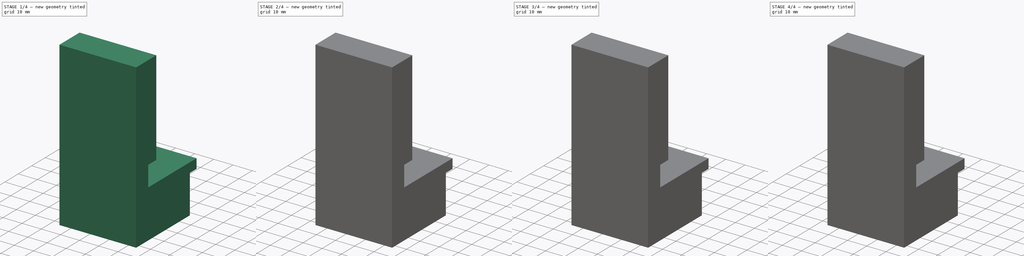
[diagram: build sequence overview — one tinted view per stage of 4, left to right]
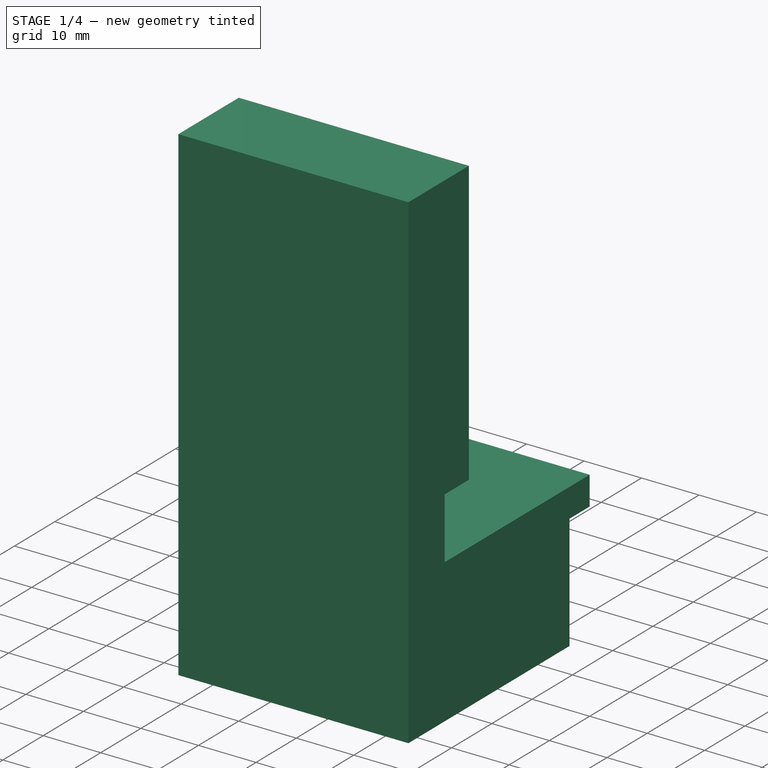
[diagram: stage 1 of 4 — iso view after this stage's code; geometry added in this stage tinted green]
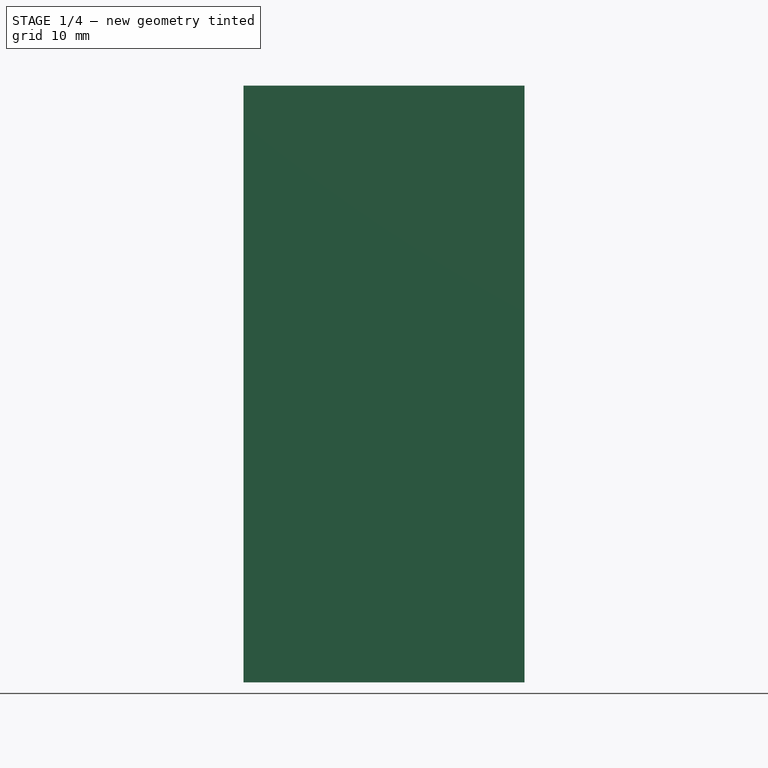
[diagram: stage 1 of 4 — front view after this stage's code; geometry added in this stage tinted green]
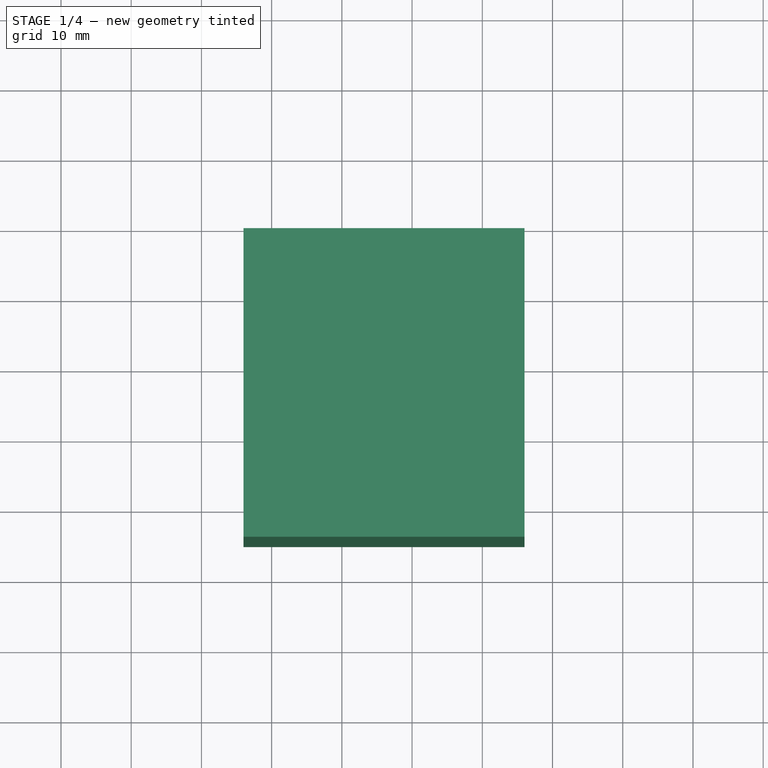
[diagram: stage 1 of 4 — top view after this stage's code; geometry added in this stage tinted green]
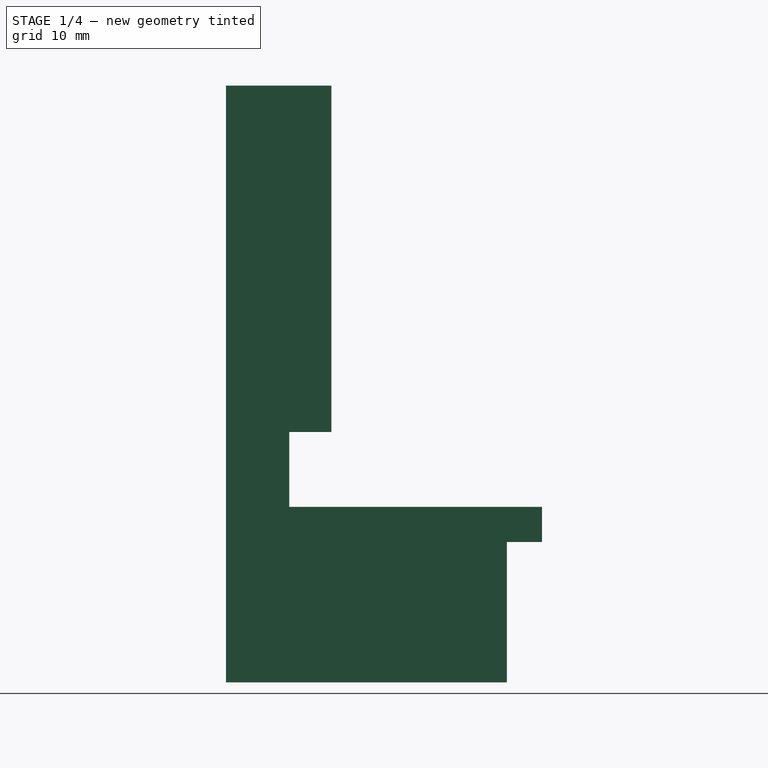
[diagram: stage 1 of 4 — right view after this stage's code; geometry added in this stage tinted green]
FCSTD DOCUMENT  (FreeCAD 1.1R20260223 (Git shallow))
Label: CNC
License: All rights reserved
LicenseURL: https://en.wikipedia.org/wiki/All_rights_reserved
objects: Sketcher::SketchObject×12, TechDraw::DrawProjGroupItem×12, PartDesign::Pocket×8, TechDraw::DrawViewAnnotation×6, TechDraw::DrawLeaderLine×6, App::Point×4, PartDesign::Pad×4, PartDesign::Body×4, TechDraw::DrawSVGTemplate×4, TechDraw::DrawProjGroup×4, TechDraw::DrawPage×4
note: 64 computed .brp shape members not serialized (recipe doc carries the construction recipe); baked Part::Feature solids carry a one-line shape summary decoded from their .brp

FEATURE [PartDesign::Body] Body005  label="Coarse X Slider"
  AllowCompound = false
  Group = -> [Sketch020,Pad005,Sketch021,Pocket014,Sketch022,Pocket015]
  Origin = -> Origin036
  Placement = pos=(0,0,0) rot=(1,0,0;3.14159rad)
  Tip = -> Pocket015
FEATURE [App::Point] Origin041  label="Origin047"
  Role = Origin
FEATURE [Sketcher::SketchObject] Sketch029
  ArcFitTolerance = 1e-06
  AttachmentSupport = -> [Origin040]
  ExternalTypes = [0]
  FullyConstrained = true
  MakeInternals = false
  MapMode = 5
  Placement = pos=(0,0,0) rot=(0.57735,0.57735,0.57735;2.0944rad)
  sketch-geometry (10):
    g0: LineSegment StartX=0 StartY=60 StartZ=0 EndX=-15 EndY=60 EndZ=0
    g1: LineSegment StartX=-15 StartY=60 StartZ=0 EndX=-15 EndY=-25 EndZ=0
    g2: LineSegment StartX=-15 StartY=-25 StartZ=0 EndX=25 EndY=-25 EndZ=0
    g3: LineSegment StartX=30 StartY=0 StartZ=0 EndX=-6 EndY=0 EndZ=0
    g4: LineSegment StartX=-6 StartY=0 StartZ=0 EndX=-6 EndY=10.66 EndZ=0
    g5: LineSegment StartX=-6 StartY=10.66 StartZ=0 EndX=0 EndY=10.66 EndZ=0
    g6: LineSegment StartX=0 StartY=10.66 StartZ=0 EndX=0 EndY=60 EndZ=0
    g7: LineSegment StartX=30 StartY=0 StartZ=0 EndX=30 EndY=-5 EndZ=0
    g8: LineSegment StartX=30 StartY=-5 StartZ=0 EndX=25 EndY=-5 EndZ=0
    g9: LineSegment StartX=25 StartY=-5 StartZ=0 EndX=25 EndY=-25 EndZ=0
  constraints (30):
    c: PointOnObject(g0,g-2)
    c: Horizontal(g0)
    c: Coincident(g1,g0)
    c: Vertical(g1)
    c: Coincident(g2,g1)
    c: Horizontal(g2)
    c: PointOnObject(g3,g-1)
    c: PointOnObject(g3,g-1)
    c: Coincident(g4,g3)
    c: Vertical(g4)
    c: Coincident(g5,g4)
    c: PointOnObject(g5,g-2)
    c: Horizontal(g5)
    c: Coincident(g6,g5)
    c: Coincident(g6,g0)
    c: Distance(g-1,g0) = 60
    c: DistanceY(g2,g3) = 25
    c: DistanceX(g0,g0) = 15
    c: DistanceY(g4,g4) = 10.66
    c: Distance(g-1,g4) = 6
    c: Coincident(g7,g3)
    c: Vertical(g7)
    c: Coincident(g8,g7)
    c: Horizontal(g8)
    c: Coincident(g9,g8)
    c: Vertical(g9)
    c: Distance(g-1,g7) = 30
    c: Coincident(g9,g2)
    c: Distance(g7,g7) = 5
    c: Distance(g-1,g9) = 25
FEATURE [PartDesign::Pad] Pad008
  Direction = (1,0,0)
  Length = 26
  Length2 = 14
  Profile = -> Sketch029
  ReferenceAxis = -> Sketch029 [N_Axis]
  Refine = true
  SideType = 1
  Suppressed = false
  Type = 0
  Type2 = 0
FEATURE [Sketcher::SketchObject] Sketch030
  ArcFitTolerance = 1e-06
  AttachmentSupport = -> [Origin040]
  ExternalTypes = [0]
  FullyConstrained = true
  MakeInternals = false
  MapMode = 5
  Placement = pos=(0,0,0) rot=(1,0,0;1.5708rad)
  sketch-geometry (10):
    g0: LineSegment [constr] StartX=3.35 StartY=13.66 StartZ=0 EndX=3.35 EndY=16.66 EndZ=0
    g1: LineSegment [constr] StartX=3.35 StartY=16.66 StartZ=0 EndX=-13.65 EndY=16.66 EndZ=0
    g2: LineSegment [constr] StartX=-13.65 StartY=16.66 StartZ=0 EndX=-13.65 EndY=13.66 EndZ=0
    g3: LineSegment [constr] StartX=-13.65 StartY=13.66 StartZ=0 EndX=3.35 EndY=13.66 EndZ=0
    g4: ArcOfCircle CenterX=3.35 CenterY=16.66 CenterZ=0 NormalX=0 NormalY=0 NormalZ=1 AngleXU=0 Radius=3 StartAngle=1e-16 EndAngle=1.5708
    g5: ArcOfCircle CenterX=3.35 CenterY=13.66 CenterZ=0 NormalX=0 NormalY=0 NormalZ=1 AngleXU=0 Radius=3 StartAngle=4.71239 EndAngle=6.28319
    g6: LineSegment StartX=6.35 StartY=16.66 StartZ=0 EndX=6.35 EndY=13.66 EndZ=0
    g7: LineSegment StartX=3.35 StartY=19.66 StartZ=0 EndX=-20 EndY=19.66 EndZ=0
    g8: LineSegment StartX=3.35 StartY=10.66 StartZ=0 EndX=-20 EndY=10.66 EndZ=0
    g9: LineSegment StartX=-20 StartY=10.66 StartZ=0 EndX=-20 EndY=19.66 EndZ=0
  constraints (26):
    c: Coincident(g0,g1)
    c: Coincident(g1,g2)
    c: Coincident(g2,g3)
    c: Coincident(g3,g0)
    c: Vertical(g0)
    c: Vertical(g2)
    c: Horizontal(g1)
    c: Horizontal(g3)
    c: Distance(g-1,g0) = 3.35
    c: Distance(g-1,g2) = 13.65
    c: Distance(g-1,g3) = 13.66
    c: Distance(g-1,g1) = 16.66
    c: Coincident(g4,g0)
    c: Coincident(g5,g0)
    c: Vertical(g6)
    c: Horizontal(g7)
    c: Horizontal(g8)
    c: Coincident(g9,g8)
    c: Coincident(g9,g7)
    c: Vertical(g9)
    c: Tangent(g4,g6) = 1.5708
    c: Tangent(g5,g6) = 1.5708
    c: Tangent(g4,g7) = -1.5708
    c: Tangent(g5,g8) = 1.5708
    c: Distance(g-1,g9) = 20
    c: Radius(g4) = 3
FEATURE [PartDesign::Pocket] Pocket019
  BaseFeature = -> Pad008
  Direction = (0,1,-2e-16)
  Length = 10
  Length2 = 5
  Profile = -> Sketch030
  ReferenceAxis = -> Sketch030 [N_Axis]
  Refine = true
  Reversed = true
  SideType = 0
  Suppressed = false
  Type = 0
  Type2 = 0
FEATURE [Sketcher::SketchObject] Sketch031
  ArcFitTolerance = 1e-06
  AttachmentSupport = -> [Origin040]
  ExternalTypes = [0]
  FullyConstrained = true
  MakeInternals = false
  MapMode = 5
  Placement = pos=(0,0,0) rot=(1,0,0;1.5708rad)
  sketch-geometry (9):
    g0: LineSegment [constr] StartX=3.35 StartY=13.66 StartZ=0 EndX=3.35 EndY=16.66 EndZ=0
    g1: LineSegment [constr] StartX=3.35 StartY=16.66 StartZ=0 EndX=-13.65 EndY=16.66 EndZ=0
    g2: LineSegment [constr] StartX=-13.65 StartY=16.66 StartZ=0 EndX=-13.65 EndY=13.66 EndZ=0
    g3: LineSegment [constr] StartX=-13.65 StartY=13.66 StartZ=0 EndX=3.35 EndY=13.66 EndZ=0
    g4: ArcOfCircle CenterX=3.35 CenterY=16.66 CenterZ=0 NormalX=0 NormalY=0 NormalZ=1 AngleXU=0 Radius=3 StartAngle=5e-16 EndAngle=1.5708
    g5: LineSegment StartX=6.35 StartY=16.66 StartZ=0 EndX=6.35 EndY=10.66 EndZ=0
    g6: LineSegment StartX=3.35 StartY=19.66 StartZ=0 EndX=-20 EndY=19.66 EndZ=0
    g7: LineSegment StartX=6.35 StartY=10.66 StartZ=0 EndX=-20 EndY=10.66 EndZ=0
    g8: LineSegment StartX=-20 StartY=10.66 StartZ=0 EndX=-20 EndY=19.66 EndZ=0
  constraints (25):
    c: Coincident(g0,g1)
    c: Coincident(g1,g2)
    c: Coincident(g2,g3)
    c: Coincident(g3,g0)
    c: Vertical(g0)
    c: Vertical(g2)
    c: Horizontal(g1)
    c: Horizontal(g3)
    c: Distance(g-1,g0) = 3.35
    c: Distance(g-1,g2) = 13.65
    c: Distance(g-1,g3) = 13.66
    c: Distance(g-1,g1) = 16.66
    c: Coincident(g4,g0)
    c: Vertical(g5)
    c: Horizontal(g6)
    c: Horizontal(g7)
    c: Coincident(g8,g7)
    c: Coincident(g8,g6)
    c: Vertical(g8)
    c: Tangent(g4,g5) = 1.5708
    c: Tangent(g4,g6) = -1.5708
    c: Distance(g-1,g8) = 20
    c: Radius(g4) = 3
    c: Coincident(g5,g7)
    c: Distance(g0,g7) = 3
FEATURE [PartDesign::Pocket] Pocket020
  BaseFeature = -> Pocket019
  Direction = (0,1,-2e-16)
  Length = 6
  Length2 = 5
  Profile = -> Sketch031
  ReferenceAxis = -> Sketch031 [N_Axis]
  Refine = true
  Reversed = true
  SideType = 0
  Suppressed = false
  Type = 0
  Type2 = 0
FEATURE [PartDesign::Body] Body007  label="STM Base"
  AllowCompound = false
  Group = -> [Sketch029,Pad008,Sketch030,Pocket019,Sketch031,Pocket020]
  Origin = -> Origin040
  Placement = pos=(0,0,0) rot=(1,0,0;1.5708rad)
  Tip = -> Pocket020
FEATURE [TechDraw::DrawSVGTemplate] Template
  Height = 210
  Orientation = 1
  Template = /Applications/FreeCAD.app/Contents/Resources/share/Mod/TechDraw/Templates/ISO/A4_Landscape_TD.svg
  Width = 297
FEATURE [TechDraw::DrawProjGroupItem] ProjItem  label="Front"
  CoarseView = false
  Direction = (0,-1,0)
  Focus = 100
  HardHidden = true
  IsoCount = 0
  IsoHidden = false
  IsoVisible = false
  LockPosition = true
  Perspective = false
  Rotation = 0
  RotationVector = (0.707107,0.707107,0)
  Scale = 3
  ScaleType = 2
  ScrubCount = 1
  SeamHidden = false
  SeamVisible = false
  SmoothHidden = false
  SmoothVisible = true
  Source = -> [Body002]
  Type = 0
  X = 0
  XDirection = (0.707107,0.707107,0)
  Y = 0
FEATURE [TechDraw::DrawProjGroupItem] ProjItem003  label="Top"
  CoarseView = false
  Direction = (0,0,1)
  Focus = 100
  HardHidden = true
  IsoCount = 0
  IsoHidden = false
  IsoVisible = false
  LockPosition = false
  Perspective = false
  Rotation = 0
  RotationVector = (1,0,0)
  Scale = 3
  ScaleType = 2
  ScrubCount = 1
  SeamHidden = false
  SeamVisible = false
  SmoothHidden = false
  SmoothVisible = true
  Source = -> [Body002]
  Type = 4
  X = 0
  XDirection = (1,0,0)
  Y = 56.76
FEATURE [TechDraw::DrawProjGroupItem] ProjItem005  label="FrontTopRight"
  CoarseView = false
  Direction = (0.57735,-0.57735,0.57735)
  Focus = 100
  HardHidden = true
  IsoCount = 0
  IsoHidden = false
  IsoVisible = false
  LockPosition = false
  Perspective = false
  Rotation = 0
  RotationVector = (1,0,0)
  Scale = 3
  ScaleType = 2
  ScrubCount = 1
  SeamHidden = false
  SeamVisible = false
  SmoothHidden = false
  SmoothVisible = true
  Source = -> [Body002]
  Type = 7
  X = 92.432
  XDirection = (0.707107,0.707107,0)
  Y = 56.76
FEATURE [TechDraw::DrawProjGroup] ProjGroup
  Anchor = -> ProjItem
  AutoDistribute = true
  LockPosition = false
  ProjectionType = 1
  Rotation = 0
  Scale = 3
  ScaleType = 2
  Source = -> [Body002]
  Views = -> [ProjItem,ProjItem003,ProjItem005]
  X = 75.3358
  Y = 52.9012
  spacingX = 15
  spacingY = 15
FEATURE [TechDraw::DrawSVGTemplate] Template001
  Height = 210
  Orientation = 1
  Template = /Applications/FreeCAD.app/Contents/Resources/share/Mod/TechDraw/Templates/ISO/A4_Landscape_TD.svg
  Width = 297
FEATURE [TechDraw::DrawProjGroupItem] ProjItem006  label="Front001"
  CoarseView = false
  Direction = (0,-1,0)
  Focus = 100
  HardHidden = true
  IsoCount = 0
  IsoHidden = false
  IsoVisible = false
  LockPosition = true
  Perspective = false
  Rotation = 0
  RotationVector = (0.707107,0.707107,0)
  Scale = 3
  ScaleType = 2
  ScrubCount = 1
  SeamHidden = false
  SeamVisible = false
  SmoothHidden = false
  SmoothVisible = true
  Source = -> [Body004]
  Type = 0
  X = 0
  XDirection = (0.707107,0.707107,0)
  Y = 0
FEATURE [TechDraw::DrawProjGroupItem] ProjItem007  label="FrontTopRight001"
  CoarseView = false
  Direction = (0.57735,-0.57735,0.57735)
  Focus = 100
  HardHidden = true
  IsoCount = 0
  IsoHidden = false
  IsoVisible = false
  LockPosition = false
  Perspective = false
  Rotation = 0
  RotationVector = (1,0,0)
  Scale = 3
  ScaleType = 2
  ScrubCount = 1
  SeamHidden = false
  SeamVisible = false
  SmoothHidden = false
  SmoothVisible = true
  Source = -> [Body004]
  Type = 7
  X = 88.2742
  XDirection = (0.707107,0.707107,0)
  Y = 64.26
FEATURE [TechDraw::DrawProjGroupItem] ProjItem008  label="Top001"
  CoarseView = false
  Direction = (0,0,1)
  Focus = 100
  HardHidden = true
  IsoCount = 0
  IsoHidden = false
  IsoVisible = false
  LockPosition = false
  Perspective = false
  Rotation = 0
  RotationVector = (1,0,0)
  Scale = 3
  ScaleType = 2
  ScrubCount = 1
  SeamHidden = false
  SeamVisible = false
  SmoothHidden = false
  SmoothVisible = true
  Source = -> [Body004]
  Type = 4
  X = 0
  XDirection = (1,0,0)
  Y = 64.26
FEATURE [TechDraw::DrawProjGroup] ProjGroup001
  Anchor = -> ProjItem006
  AutoDistribute = true
  LockPosition = false
  ProjectionType = 1
  Rotation = 0
  Scale = 3
  ScaleType = 2
  Source = -> [Body004]
  Views = -> [ProjItem006,ProjItem007,ProjItem008]
  X = 82.6035
  Y = 40.3352
  spacingX = 15
  spacingY = 15
FEATURE [TechDraw::DrawSVGTemplate] Template002
  Height = 210
  Orientation = 1
  Template = /Applications/FreeCAD.app/Contents/Resources/share/Mod/TechDraw/Templates/ISO/A4_Landscape_TD.svg
  Width = 297
FEATURE [TechDraw::DrawProjGroupItem] ProjItem009  label="Front002"
  CoarseView = false
  Direction = (0,-1,0)
  Focus = 100
  HardHidden = true
  IsoCount = 0
  IsoHidden = false
  IsoVisible = false
  LockPosition = true
  Perspective = false
  Rotation = 0
  RotationVector = (0.707107,0.707107,0)
  Scale = 3
  ScaleType = 2
  ScrubCount = 1
  SeamHidden = false
  SeamVisible = false
  SmoothHidden = false
  SmoothVisible = true
  Source = -> [Body005]
  Type = 0
  X = 0
  XDirection = (0.707107,0.707107,0)
  Y = 0
FEATURE [TechDraw::DrawProjGroupItem] ProjItem010  label="Top002"
  CoarseView = false
  Direction = (0,0,1)
  Focus = 100
  HardHidden = true
  IsoCount = 0
  IsoHidden = false
  IsoVisible = false
  LockPosition = false
  Perspective = false
  Rotation = 0
  RotationVector = (1,0,0)
  Scale = 3
  ScaleType = 2
  ScrubCount = 1
  SeamHidden = false
  SeamVisible = false
  SmoothHidden = false
  SmoothVisible = true
  Source = -> [Body005]
  Type = 4
  X = 0
  XDirection = (1,0,0)
  Y = 64.26
FEATURE [TechDraw::DrawProjGroupItem] ProjItem011  label="FrontTopRight002"
  CoarseView = false
  Direction = (0.57735,-0.57735,0.57735)
  Focus = 100
  HardHidden = true
  IsoCount = 0
  IsoHidden = false
  IsoVisible = false
  LockPosition = false
  Perspective = false
  Rotation = 0
  RotationVector = (1,0,0)
  Scale = 3
  ScaleType = 2
  ScrubCount = 1
  SeamHidden = false
  SeamVisible = false
  SmoothHidden = false
  SmoothVisible = true
  Source = -> [Body005]
  Type = 7
  X = 97.5315
  XDirection = (0.707107,0.707107,0)
  Y = 64.26
FEATURE [TechDraw::DrawProjGroup] ProjGroup002
  Anchor = -> ProjItem009
  AutoDistribute = true
  LockPosition = false
  ProjectionType = 1
  Rotation = 0
  Scale = 3
  ScaleType = 2
  Source = -> [Body005]
  Views = -> [ProjItem009,ProjItem010,ProjItem011]
  X = 77.6767
  Y = 33.5608
  spacingX = 15
  spacingY = 15
FEATURE [TechDraw::DrawViewAnnotation] Annotation
  Font = osifont
  LineSpace = 100
  LockPosition = false
  MaxWidth = -1
  Rotation = 0
  ScaleType = 0
  Text = V-Groove | 0.4 μm Ra
  TextSize = 5
  TextStyle = 0
  X = 40.7254
  Y = 176.131
FEATURE [TechDraw::DrawViewAnnotation] Annotation003
  Font = osifont
  LineSpace = 100
  LockPosition = false
  MaxWidth = -1
  Rotation = 0
  ScaleType = 0
  Text = Recessed Large Flat Area | 0.4 μm Ra
  TextSize = 5
  TextStyle = 0
  X = 133.719
  Y = 176.131
FEATURE [TechDraw::DrawLeaderLine] LeaderLine
  AutoHorizontal = true
  EndSymbol = 7
  LeaderParent = -> ProjItem003
  LockPosition = true
  RotatesWithParent = true
  Rotation = 0
  Scalable = false
  ScaleType = 0
  StartSymbol = 0
  WayPoints = (3) [(0,0,0),(-0.307927,-51.4239,0),(9.54575,-51.7318,0)]
  X = 7.52837
  Y = 0.089651
FEATURE [TechDraw::DrawLeaderLine] LeaderLine001
  AutoHorizontal = true
  EndSymbol = 7
  LeaderParent = -> ProjItem003
  LockPosition = true
  RotatesWithParent = true
  Rotation = 0
  Scalable = false
  ScaleType = 0
  StartSymbol = 0
  WayPoints = (3) [(0,0,0),(-2.50592,-7.7962,0),(-14.7571,-8.07463,0)]
  X = -7.65696
  Y = 13.3102
FEATURE [TechDraw::DrawPage] Page  label="Coarse Z Slider Drawing"
  KeepUpdated = true
  NextBalloonIndex = 1
  ProjectionType = 0
  Template = -> Template
  Views = -> [ProjGroup,Annotation,Annotation003,LeaderLine,LeaderLine001]
FEATURE [TechDraw::DrawViewAnnotation] Annotation005
  Font = osifont
  LineSpace = 100
  LockPosition = false
  MaxWidth = -1
  Rotation = 0
  ScaleType = 0
  Text = V-Groove | 0.4 μm Ra
  TextSize = 5
  TextStyle = 0
  X = 51.8108
  Y = 174.9
FEATURE [TechDraw::DrawViewAnnotation] Annotation006
  Font = osifont
  LineSpace = 100
  LockPosition = false
  MaxWidth = -1
  Rotation = 0
  ScaleType = 0
  Text = Recessed Large Flat Area | 0.4 μm Ra
  TextSize = 5
  TextStyle = 0
  X = 133.412
  Y = 174.9
FEATURE [TechDraw::DrawViewAnnotation] Annotation007
  Font = osifont
  LineSpace = 100
  LockPosition = false
  MaxWidth = -1
  Rotation = 0
  ScaleType = 0
  Text = V-Groove | 0.4 μm Ra
  TextSize = 5
  TextStyle = 0
  X = 50.5791
  Y = 174.284
FEATURE [TechDraw::DrawViewAnnotation] Annotation008
  Font = osifont
  LineSpace = 100
  LockPosition = false
  MaxWidth = -1
  Rotation = 0
  ScaleType = 0
  Text = Recessed Large Flat Area | 0.4 μm Ra
  TextSize = 5
  TextStyle = 0
  X = 137.415
  Y = 174.284
FEATURE [TechDraw::DrawLeaderLine] LeaderLine002
  AutoHorizontal = true
  EndSymbol = 7
  LeaderParent = -> ProjItem008
  LockPosition = true
  RotatesWithParent = true
  Rotation = 0
  Scalable = false
  ScaleType = 0
  StartSymbol = 0
  WayPoints = (3) [(0,0,0),(-0.307927,-54.8111,0),(12.625,-54.8111,0)]
  X = 7.67187
  Y = 0.238653
FEATURE [TechDraw::DrawLeaderLine] LeaderLine003
  AutoHorizontal = true
  EndSymbol = 7
  LeaderParent = -> ProjItem008
  LockPosition = true
  RotatesWithParent = true
  Rotation = 0
  Scalable = false
  ScaleType = 0
  StartSymbol = 0
  WayPoints = (3) [(0,0,0),(-3.3872,-7.69819,0),(-17.5519,-7.69819,0)]
  X = -7.51922
  Y = 15.8403
FEATURE [TechDraw::DrawPage] Page001  label="Coarse Y Slider Drawing"
  KeepUpdated = true
  NextBalloonIndex = 1
  ProjectionType = 0
  Template = -> Template001
  Views = -> [ProjGroup001,Annotation005,Annotation006,LeaderLine002,LeaderLine003]
FEATURE [TechDraw::DrawLeaderLine] LeaderLine004
  AutoHorizontal = true
  EndSymbol = 7
  LeaderParent = -> ProjItem010
  LockPosition = true
  RotatesWithParent = true
  Rotation = 0
  Scalable = false
  ScaleType = 0
  StartSymbol = 0
  WayPoints = (3) [(0,0,0),(-0.615855,-55.4269,0),(13.8567,-55.7349,0)]
  X = 10.0326
  Y = 1.98358
FEATURE [TechDraw::DrawLeaderLine] LeaderLine005
  AutoHorizontal = true
  EndSymbol = 7
  LeaderParent = -> ProjItem010
  LockPosition = true
  RotatesWithParent = true
  Rotation = 0
  Scalable = false
  ScaleType = 0
  StartSymbol = 0
  WayPoints = (3) [(0,0,0),(-6.15855,-12.0092,0),(-23.4025,-12.0092,0)]
  X = -4.85052
  Y = 15.8403
FEATURE [TechDraw::DrawPage] Page002  label="Coarse X Slider Drawing"
  KeepUpdated = true
  NextBalloonIndex = 1
  ProjectionType = 0
  Template = -> Template002
  Views = -> [ProjGroup002,Annotation007,Annotation008,LeaderLine004,LeaderLine005]
FEATURE [TechDraw::DrawSVGTemplate] Template003
  Height = 210
  Orientation = 1
  Template = /Applications/FreeCAD.app/Contents/Resources/share/Mod/TechDraw/Templates/ISO/A4_Landscape_TD.svg
  Width = 297
FEATURE [TechDraw::DrawProjGroupItem] ProjItem012  label="Front003"
  CoarseView = false
  Direction = (0,-1,0)
  Focus = 100
  HardHidden = true
  IsoCount = 0
  IsoHidden = false
  IsoVisible = false
  LockPosition = true
  Perspective = false
  Rotation = 0
  RotationVector = (0.707107,0.707107,0)
  ScaleType = 0
  ScrubCount = 1
  SeamHidden = false
  SeamVisible = false
  SmoothHidden = false
  SmoothVisible = true
  Source = -> [Body007]
  Type = 0
  X = 0
  XDirection = (0.707107,0.707107,0)
  Y = 0
FEATURE [TechDraw::DrawProjGroupItem] ProjItem013  label="Top003"
  CoarseView = false
  Direction = (0,0,1)
  Focus = 100
  HardHidden = true
  IsoCount = 0
  IsoHidden = false
  IsoVisible = false
  LockPosition = false
  Perspective = false
  Rotation = 0
  RotationVector = (1,0,0)
  ScaleType = 0
  ScrubCount = 1
  SeamHidden = false
  SeamVisible = false
  SmoothHidden = false
  SmoothVisible = true
  Source = -> [Body007]
  Type = 4
  X = 0
  XDirection = (1,0,0)
  Y = 80
FEATURE [TechDraw::DrawProjGroupItem] ProjItem014  label="FrontTopRight003"
  CoarseView = false
  Direction = (0.57735,-0.57735,0.57735)
  Focus = 100
  HardHidden = true
  IsoCount = 0
  IsoHidden = false
  IsoVisible = false
  LockPosition = false
  Perspective = false
  Rotation = 0
  RotationVector = (1,0,0)
  ScaleType = 0
  ScrubCount = 1
  SeamHidden = false
  SeamVisible = false
  SmoothHidden = false
  SmoothVisible = true
  Source = -> [Body007]
  Type = 7
  X = 79.1942
  XDirection = (0.707107,0.707107,0)
  Y = 80
FEATURE [TechDraw::DrawProjGroup] ProjGroup003
  Anchor = -> ProjItem012
  AutoDistribute = true
  LockPosition = false
  ProjectionType = 1
  Rotation = 0
  ScaleType = 0
  Source = -> [Body007]
  Views = -> [ProjItem012,ProjItem013,ProjItem014]
  X = 92.4572
  Y = 48.6493
  spacingX = 15
  spacingY = 15
FEATURE [TechDraw::DrawPage] Page003  label="STM Base Drawing"
  KeepUpdated = true
  NextBalloonIndex = 1
  ProjectionType = 0
  Template = -> Template003
  Views = -> [ProjGroup003]
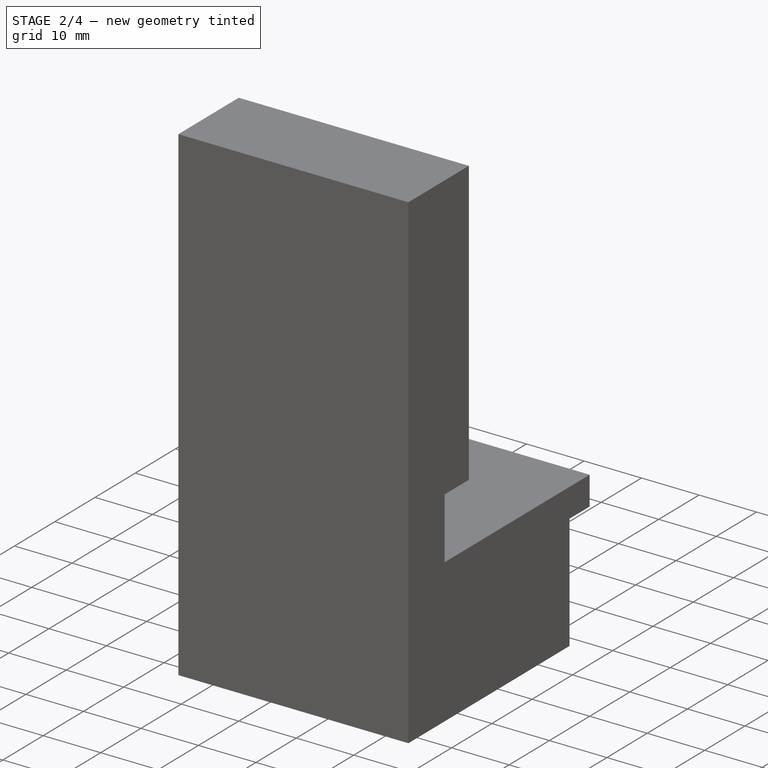
[diagram: stage 2 of 4 — iso view after this stage's code; geometry added in this stage tinted green]
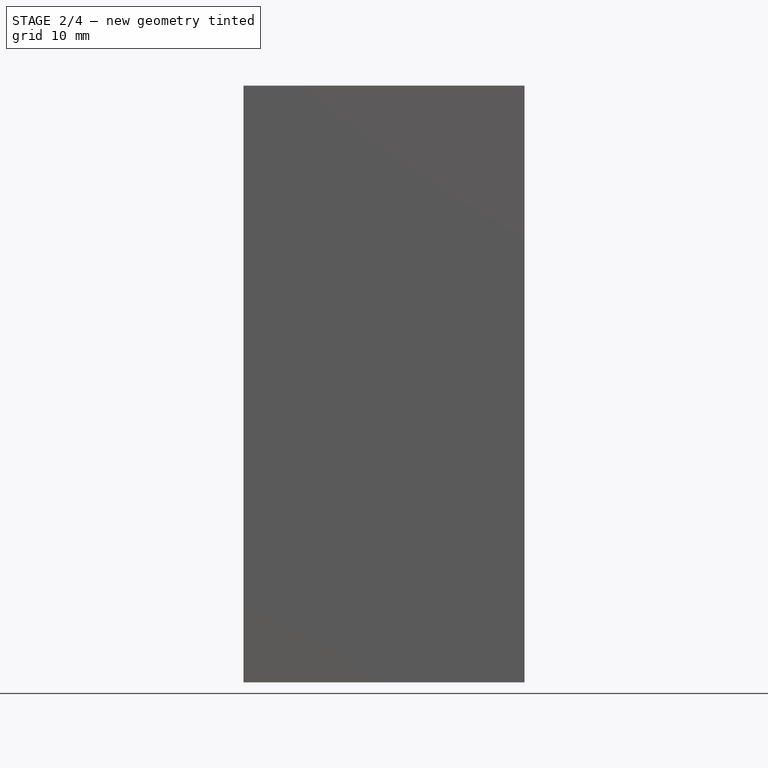
[diagram: stage 2 of 4 — front view after this stage's code; geometry added in this stage tinted green]
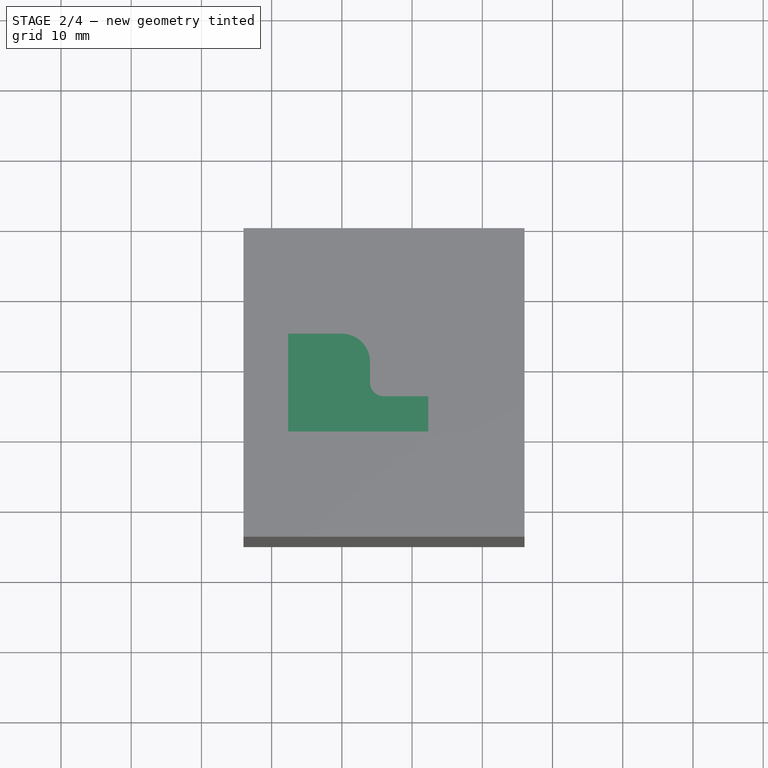
[diagram: stage 2 of 4 — top view after this stage's code; geometry added in this stage tinted green]
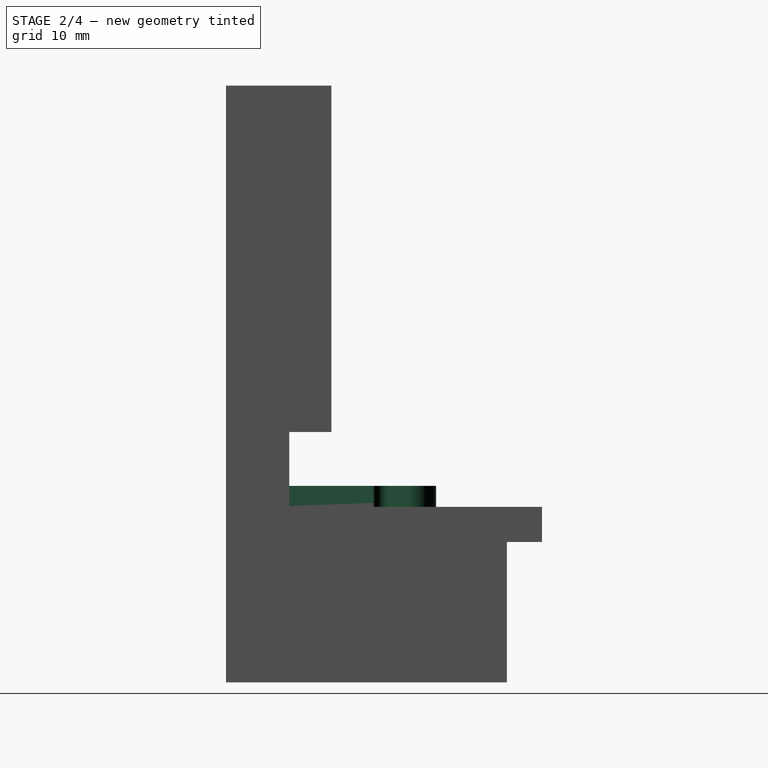
[diagram: stage 2 of 4 — right view after this stage's code; geometry added in this stage tinted green]
FEATURE [PartDesign::Body] Body004  label="Coarse Y Slider"
  AllowCompound = false
  Group = -> [Sketch017,Pad004,Sketch018,Pocket012,Sketch019,Pocket013]
  Origin = -> Origin034
  Placement = pos=(0,0,0) rot=(1,0,0;3.14159rad)
  Tip = -> Pocket013
FEATURE [App::Point] Origin037  label="Origin043"
  Role = Origin
FEATURE [Sketcher::SketchObject] Sketch020
  ArcFitTolerance = 1e-06
  AttachmentSupport = -> [Origin036]
  ExternalTypes = [0]
  FullyConstrained = true
  MakeInternals = false
  MapMode = 5
  sketch-geometry (20):
    g0: LineSegment StartX=-7.65 StartY=14.92 StartZ=0 EndX=0 EndY=14.92 EndZ=0
    g1: LineSegment StartX=-7.65 StartY=-14.92 StartZ=0 EndX=-2.65 EndY=-14.92 EndZ=0
    g2: LineSegment StartX=12.3 StartY=6 StartZ=0 EndX=12.3 EndY=-6 EndZ=0
    g3: LineSegment StartX=-2.65 StartY=-14.92 StartZ=0 EndX=-2.65 EndY=-12 EndZ=0
    g4: LineSegment StartX=12.3 StartY=6 StartZ=0 EndX=6 EndY=6 EndZ=0
    g5: ArcOfCircle CenterX=6 CenterY=8 CenterZ=0 NormalX=0 NormalY=0 NormalZ=1 AngleXU=0 Radius=2 StartAngle=3.14159 EndAngle=4.71239
    g6: LineSegment StartX=-0.65 StartY=-10 StartZ=0 EndX=8.3 EndY=-10 EndZ=0
    g7: ArcOfCircle CenterX=-0.65 CenterY=-12 CenterZ=0 NormalX=0 NormalY=0 NormalZ=1 AngleXU=0 Radius=2 StartAngle=1.5708 EndAngle=3.14159
    g8: GeomPoint [constr] X=8.92 Y=-5.15 Z=0
    g9: GeomPoint [constr] X=-8.92 Y=-5.15 Z=0
    g10: GeomPoint [constr] X=0 Y=10.3 Z=0
    g11: ArcOfCircle CenterX=8.3 CenterY=-6 CenterZ=0 NormalX=0 NormalY=0 NormalZ=1 AngleXU=0 Radius=4 StartAngle=4.71239 EndAngle=6.28319
    g12: ArcOfCircle CenterX=-5e-16 CenterY=10.92 CenterZ=0 NormalX=0 NormalY=0 NormalZ=1 AngleXU=0 Radius=4 StartAngle=2e-16 EndAngle=1.5708
    g13: LineSegment StartX=4 StartY=10.92 StartZ=0 EndX=4 EndY=8 EndZ=0
    g14: LineSegment StartX=-7.65 StartY=14.92 StartZ=0 EndX=-7.65 EndY=-0.15 EndZ=0
    g15: LineSegment StartX=-7.65 StartY=-14.92 StartZ=0 EndX=-7.65 EndY=-10.15 EndZ=0
    g16: ArcOfCircle CenterX=-9.65 CenterY=-10.15 CenterZ=0 NormalX=0 NormalY=0 NormalZ=1 AngleXU=0 Radius=2 StartAngle=2e-16 EndAngle=1.5708
    g17: ArcOfCircle CenterX=-9.65 CenterY=-0.15 CenterZ=0 NormalX=0 NormalY=0 NormalZ=1 AngleXU=0 Radius=2 StartAngle=4.71239 EndAngle=6.28319
    g18: ArcOfCircle CenterX=-9.65 CenterY=-5.15 CenterZ=0 NormalX=0 NormalY=0 NormalZ=1 AngleXU=0 Radius=3 StartAngle=1.5708 EndAngle=3.14159
    g19: ArcOfCircle CenterX=-9.65 CenterY=-5.15 CenterZ=0 NormalX=0 NormalY=0 NormalZ=1 AngleXU=0 Radius=3 StartAngle=3.14159 EndAngle=4.71239
  constraints (53):
    c: Horizontal(g0)
    c: Horizontal(g1)
    c: Distance(g-1,g0) = 14.92
    c: Distance(g-1,g1) = 14.92
    c: Vertical(g2)
    c: Distance(g-1,g2) = 12.3
    c: DistanceX(g0,g0) = 7.65
    c: DistanceY(g-1,g2) = 6
    c: DistanceY(g-1,g2) = -6
    c: Coincident(g3,g1)
    c: Vertical(g3)
    c: Coincident(g4,g2)
    c: Horizontal(g4)
    c: Tangent(g5,g4) = 1.5708
    c: Horizontal(g6)
    c: Tangent(g3,g7) = 1.5708
    c: Tangent(g6,g7) = 1.5708
    c: Radius(g5) = 2
    c: Distance(g-1,g6) = 10
    c: DistanceY(g-1,g8) = -5.15
    c: DistanceX(g-2,g8) = 8.92
    c: DistanceY(g-1,g9) = -5.15
    c: DistanceX(g-2,g9) = -8.92
    c: PointOnObject(g10,g-2)
    c: DistanceY(g-1,g10) = 10.3
    c: Radius(g11) = 4
    c: Coincident(g11,g2)
    c: Tangent(g11,g6) = -1.5708
    c: Radius(g12) = 4
    c: Tangent(g0,g12) = 1.5708
    c: Vertical(g13)
    c: Tangent(g12,g13) = 1.5708
    c: Tangent(g5,g13) = -1.5708
    c: Radius(g7) = 2
    c: Coincident(g14,g0)
    c: Vertical(g14)
    c: Coincident(g15,g1)
    c: Vertical(g15)
    c: Radius(g17) = 2
    c: Equal(g17,g16)
    c: PointOnObject(g0,g-2)
    c: Tangent(g17,g14) = 1.5708
    c: Tangent(g15,g16) = -1.5708
    c: Angle(g18) = 1.5708
    c: Angle(g19) = 1.5708
    c: Radius(g18) = 3
    c: Equal(g18,g19)
    c: Tangent(g19,g18) = -1.5708
    c: Tangent(g17,g18) = 1.5708
    c: Tangent(g19,g16) = 1.5708
    c: DistanceY(g-1,g18) = -5.15
    c: DistanceX(g1,g1) = 5
    c: DistanceX(g-2,g1) = -7.65
FEATURE [PartDesign::Pad] Pad005
  Direction = (0,0,1)
  Length = 3
  Length2 = 10
  Profile = -> Sketch020
  ReferenceAxis = -> Sketch020 [N_Axis]
  Refine = true
  SideType = 0
  Suppressed = false
  Type = 0
  Type2 = 0
FEATURE [Sketcher::SketchObject] Sketch021
  ArcFitTolerance = 1e-06
  AttachmentSupport = -> [Origin036]
  ExternalTypes = [0]
  FullyConstrained = true
  MakeInternals = false
  MapMode = 5
  Placement = pos=(0,0,0) rot=(1,0,0;1.5708rad)
  sketch-geometry (3):
    g0: LineSegment StartX=-5.15 StartY=0.866025 StartZ=0 EndX=-6.65 EndY=0 EndZ=0
    g1: LineSegment StartX=-5.15 StartY=0.866025 StartZ=0 EndX=-3.65 EndY=0 EndZ=0
    g2: LineSegment StartX=-3.65 StartY=0 StartZ=0 EndX=-6.65 EndY=0 EndZ=0
  constraints (9):
    c: Coincident(g1,g0)
    c: Coincident(g2,g1)
    c: Coincident(g2,g0)
    c: PointOnObject(g1,g-1)
    c: PointOnObject(g0,g-1)
    c: Distance(g-1,g1) = 3.65
    c: Distance(g1,g0) = 3
    c: Equal(g0,g1)
    c: Angle(g0,g1) = 2.0944
FEATURE [PartDesign::Pocket] Pocket014
  BaseFeature = -> Pad005
  Direction = (0,1,-2e-16)
  Length = 5
  Length2 = 5
  Profile = -> Sketch021
  ReferenceAxis = -> Sketch021 [N_Axis]
  Refine = true
  SideType = 2
  Suppressed = false
  Type = 1
  Type2 = 0
FEATURE [Sketcher::SketchObject] Sketch022
  ArcFitTolerance = 1e-06
  AttachmentSupport = -> [Origin036]
  ExternalTypes = [0]
  FullyConstrained = true
  MakeInternals = false
  MapMode = 5
  Placement = pos=(0,0,0) rot=(1,0,0;1.5708rad)
  sketch-geometry (4):
    g0: LineSegment StartX=7.3 StartY=0.56 StartZ=0 EndX=7.3 EndY=0 EndZ=0
    g1: LineSegment StartX=7.3 StartY=0 StartZ=0 EndX=12.3 EndY=0 EndZ=0
    g2: LineSegment StartX=12.3 StartY=0 StartZ=0 EndX=12.3 EndY=0.56 EndZ=0
    g3: LineSegment StartX=12.3 StartY=0.56 StartZ=0 EndX=7.3 EndY=0.56 EndZ=0
  constraints (12):
    c: Coincident(g0,g1)
    c: Coincident(g1,g2)
    c: Coincident(g2,g3)
    c: Coincident(g3,g0)
    c: Vertical(g0)
    c: Vertical(g2)
    c: Horizontal(g1)
    c: Horizontal(g3)
    c: Distance(g-1,g0) = 7.3
    c: DistanceX(g3,g3) = 5
    c: PointOnObject(g0,g-1)
    c: DistanceY(g0,g0) = 0.56
FEATURE [PartDesign::Pocket] Pocket015
  BaseFeature = -> Pocket014
  Direction = (0,1,-2e-16)
  Length = 5
  Length2 = 5
  Profile = -> Sketch022
  ReferenceAxis = -> Sketch022 [N_Axis]
  Refine = true
  SideType = 2
  Suppressed = false
  Type = 1
  Type2 = 0
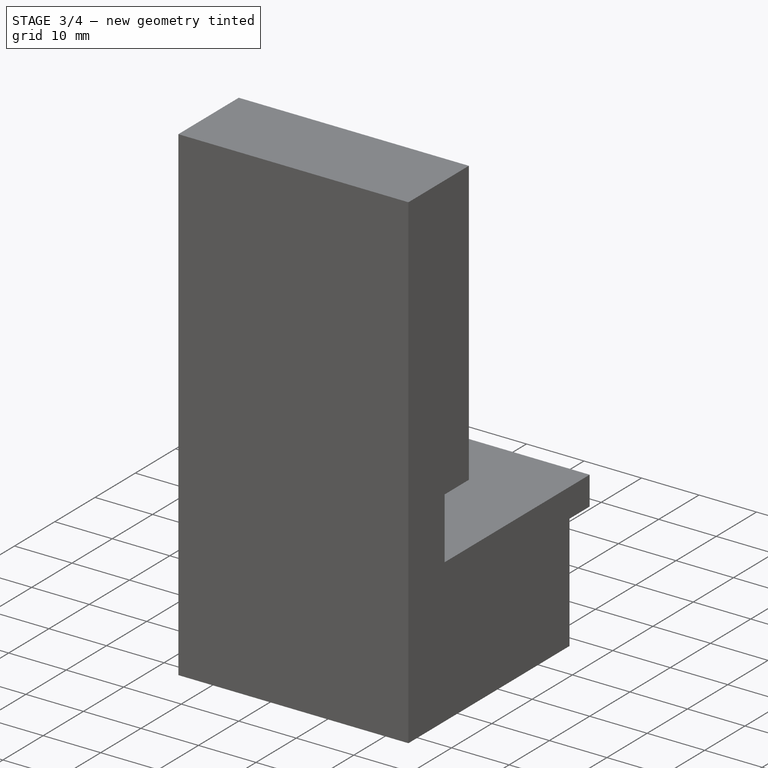
[diagram: stage 3 of 4 — iso view after this stage's code; geometry added in this stage tinted green]
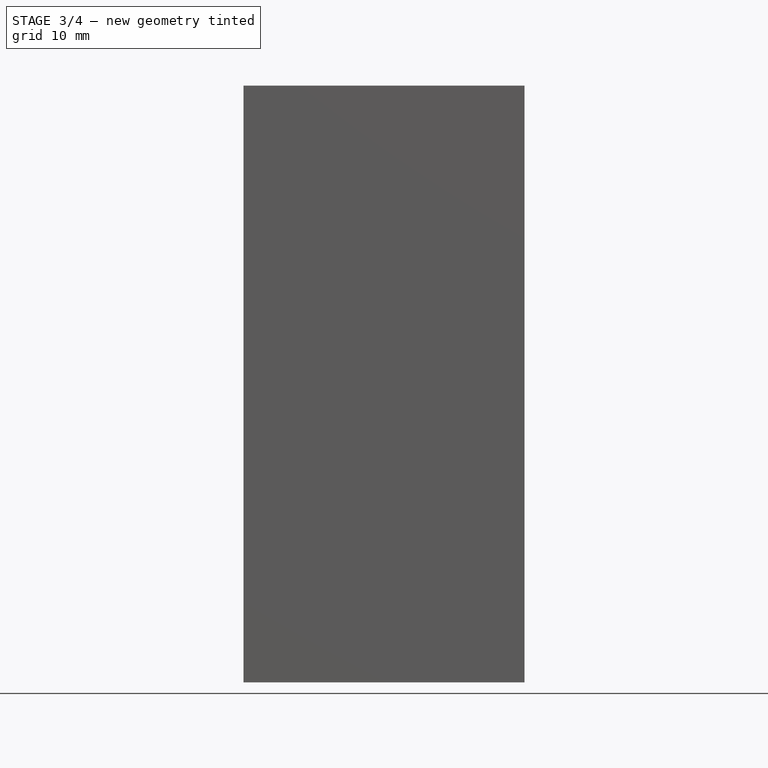
[diagram: stage 3 of 4 — front view after this stage's code; geometry added in this stage tinted green]
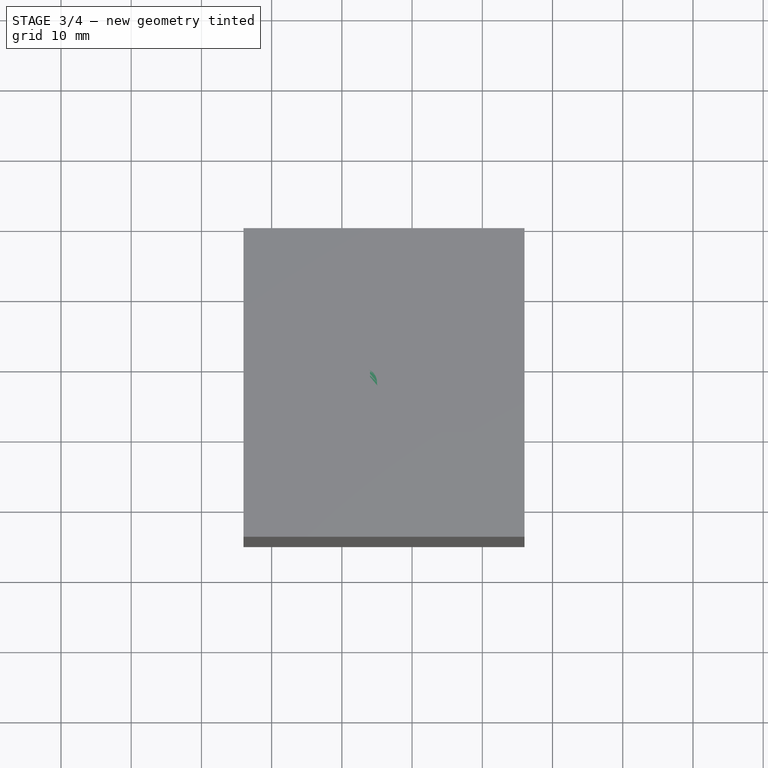
[diagram: stage 3 of 4 — top view after this stage's code; geometry added in this stage tinted green]
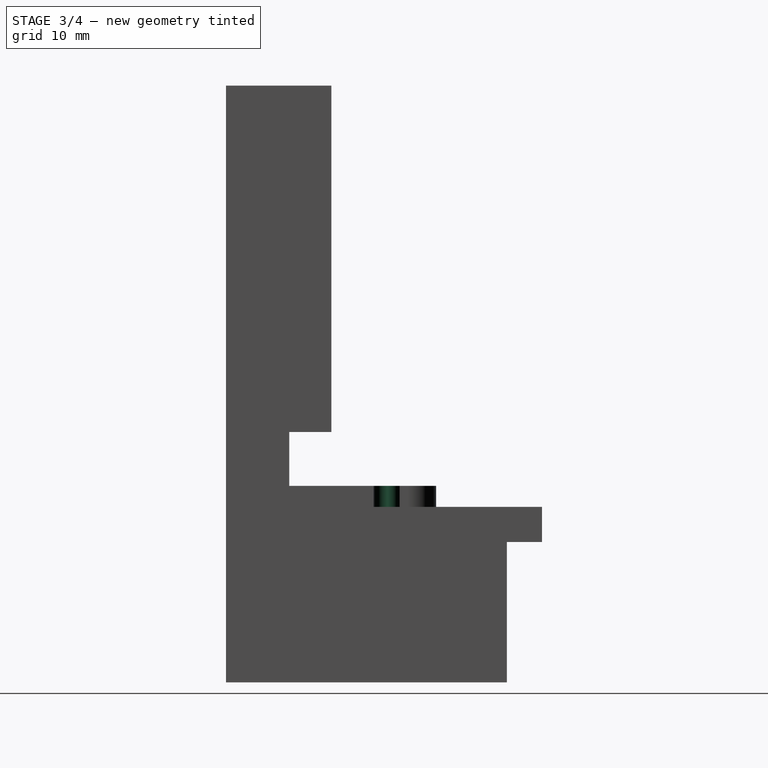
[diagram: stage 3 of 4 — right view after this stage's code; geometry added in this stage tinted green]
FEATURE [PartDesign::Body] Body002  label="Coarse Z Slider"
  AllowCompound = false
  Group = -> [Sketch011,Pad002,Sketch012,Pocket008,Sketch013,Pocket009]
  Origin = -> Origin030
  Placement = pos=(0,0,0) rot=(1,0,0;3.14159rad)
  Tip = -> Pocket009
FEATURE [App::Point] Origin035  label="Origin041"
  Role = Origin
FEATURE [Sketcher::SketchObject] Sketch017
  ArcFitTolerance = 1e-06
  AttachmentSupport = -> [Origin034]
  ExternalTypes = [0]
  FullyConstrained = true
  MakeInternals = false
  MapMode = 5
  sketch-geometry (16):
    g0: LineSegment StartX=-7.65 StartY=-14.92 StartZ=0 EndX=-7.65 EndY=14.92 EndZ=0
    g1: LineSegment StartX=-7.65 StartY=14.92 StartZ=0 EndX=-2.65 EndY=14.92 EndZ=0
    g2: LineSegment StartX=-7.65 StartY=-14.92 StartZ=0 EndX=-2.65 EndY=-14.92 EndZ=0
    g3: LineSegment StartX=12.3 StartY=6 StartZ=0 EndX=12.3 EndY=-6 EndZ=0
    g4: LineSegment StartX=-2.65 StartY=14.92 StartZ=0 EndX=-2.65 EndY=12 EndZ=0
    g5: LineSegment StartX=-2.65 StartY=-14.92 StartZ=0 EndX=-2.65 EndY=-12 EndZ=0
    g6: LineSegment StartX=12.3 StartY=6 StartZ=0 EndX=7 EndY=6 EndZ=0
    g7: LineSegment StartX=12.3 StartY=-6 StartZ=0 EndX=7 EndY=-6 EndZ=0
    g8: LineSegment StartX=-0.65 StartY=10 StartZ=0 EndX=3 EndY=10 EndZ=0
    g9: ArcOfCircle CenterX=-0.65 CenterY=12 CenterZ=0 NormalX=0 NormalY=0 NormalZ=1 AngleXU=0 Radius=2 StartAngle=3.14159 EndAngle=4.71239
    g10: ArcOfCircle CenterX=7 CenterY=8 CenterZ=0 NormalX=0 NormalY=0 NormalZ=1 AngleXU=0 Radius=2 StartAngle=3.14159 EndAngle=4.71239
    g11: LineSegment StartX=-0.65 StartY=-10 StartZ=0 EndX=3 EndY=-10 EndZ=0
    g12: ArcOfCircle CenterX=-0.65 CenterY=-12 CenterZ=0 NormalX=0 NormalY=0 NormalZ=1 AngleXU=0 Radius=2 StartAngle=1.5708 EndAngle=3.14159
    g13: ArcOfCircle CenterX=7 CenterY=-8 CenterZ=0 NormalX=0 NormalY=0 NormalZ=1 AngleXU=0 Radius=2 StartAngle=1.5708 EndAngle=3.14159
    g14: ArcOfCircle CenterX=3 CenterY=8 CenterZ=0 NormalX=0 NormalY=0 NormalZ=1 AngleXU=0 Radius=2 StartAngle=0 EndAngle=1.5708
    g15: ArcOfCircle CenterX=3 CenterY=-8 CenterZ=0 NormalX=0 NormalY=0 NormalZ=1 AngleXU=0 Radius=2 StartAngle=4.71239 EndAngle=6.28319
  constraints (46):
    c: Vertical(g0)
    c: Coincident(g1,g0)
    c: Horizontal(g1)
    c: Coincident(g2,g0)
    c: Horizontal(g2)
    c: Distance(g-1,g1) = 14.92
    c: Distance(g-1,g2) = 14.92
    c: Distance(g-1,g0) = 7.65
    c: Vertical(g3)
    c: Distance(g-1,g3) = 12.3
    c: DistanceX(g1,g1) = 5
    c: Equal(g1,g2)
    c: DistanceY(g-1,g3) = 6
    c: DistanceY(g-1,g3) = -6
    c: Coincident(g4,g1)
    c: Vertical(g4)
    c: Coincident(g5,g2)
    c: Vertical(g5)
    c: Coincident(g6,g3)
    c: Horizontal(g6)
    c: Horizontal(g7)
    c: Coincident(g7,g3)
    c: Equal(g4,g5)
    c: Equal(g7,g6)
    c: Horizontal(g8)
    c: Tangent(g9,g4) = -1.5708
    c: Tangent(g9,g8) = -1.5708
    c: Tangent(g10,g6) = 1.5708
    c: Horizontal(g11)
    c: Tangent(g5,g12) = 1.5708
    c: Tangent(g11,g12) = 1.5708
    c: Tangent(g7,g13) = -1.5708
    c: Equal(g8,g11)
    c: Equal(g9,g12)
    c: Radius(g9) = 2
    c: Radius(g10) = 2
    c: Tangent(g8,g14) = 1.5708
    c: Tangent(g15,g11) = -1.5708
    c: Equal(g14,g10)
    c: Angle(g14) = 1.5708
    c: Angle(g10) = 1.5708
    c: Coincident(g10,g14)
    c: Coincident(g13,g15)
    c: Angle(g13) = 1.5708
    c: Equal(g13,g10)
    c: DistanceX(g-2,g13) = 5
FEATURE [PartDesign::Pad] Pad004
  Direction = (0,0,1)
  Length = 3
  Length2 = 10
  Profile = -> Sketch017
  ReferenceAxis = -> Sketch017 [N_Axis]
  Refine = true
  SideType = 0
  Suppressed = false
  Type = 0
  Type2 = 0
FEATURE [Sketcher::SketchObject] Sketch018
  ArcFitTolerance = 1e-06
  AttachmentSupport = -> [Origin034]
  ExternalTypes = [0]
  FullyConstrained = true
  MakeInternals = false
  MapMode = 5
  Placement = pos=(0,0,0) rot=(1,0,0;1.5708rad)
  sketch-geometry (3):
    g0: LineSegment StartX=-5.15 StartY=0.866025 StartZ=0 EndX=-6.65 EndY=0 EndZ=0
    g1: LineSegment StartX=-5.15 StartY=0.866025 StartZ=0 EndX=-3.65 EndY=0 EndZ=0
    g2: LineSegment StartX=-3.65 StartY=0 StartZ=0 EndX=-6.65 EndY=0 EndZ=0
  constraints (9):
    c: Coincident(g1,g0)
    c: Coincident(g2,g1)
    c: Coincident(g2,g0)
    c: PointOnObject(g1,g-1)
    c: PointOnObject(g0,g-1)
    c: Distance(g-1,g1) = 3.65
    c: Distance(g1,g0) = 3
    c: Equal(g0,g1)
    c: Angle(g0,g1) = 2.0944
FEATURE [PartDesign::Pocket] Pocket012
  BaseFeature = -> Pad004
  Direction = (0,1,-2e-16)
  Length = 5
  Length2 = 5
  Profile = -> Sketch018
  ReferenceAxis = -> Sketch018 [N_Axis]
  Refine = true
  SideType = 2
  Suppressed = false
  Type = 1
  Type2 = 0
FEATURE [Sketcher::SketchObject] Sketch019
  ArcFitTolerance = 1e-06
  AttachmentSupport = -> [Origin034]
  ExternalTypes = [0]
  FullyConstrained = true
  MakeInternals = false
  MapMode = 5
  Placement = pos=(0,0,0) rot=(1,0,0;1.5708rad)
  sketch-geometry (4):
    g0: LineSegment StartX=7.3 StartY=0.56 StartZ=0 EndX=7.3 EndY=0 EndZ=0
    g1: LineSegment StartX=7.3 StartY=0 StartZ=0 EndX=12.3 EndY=0 EndZ=0
    g2: LineSegment StartX=12.3 StartY=0 StartZ=0 EndX=12.3 EndY=0.56 EndZ=0
    g3: LineSegment StartX=12.3 StartY=0.56 StartZ=0 EndX=7.3 EndY=0.56 EndZ=0
  constraints (12):
    c: Coincident(g0,g1)
    c: Coincident(g1,g2)
    c: Coincident(g2,g3)
    c: Coincident(g3,g0)
    c: Vertical(g0)
    c: Vertical(g2)
    c: Horizontal(g1)
    c: Horizontal(g3)
    c: Distance(g-1,g0) = 7.3
    c: DistanceX(g3,g3) = 5
    c: PointOnObject(g0,g-1)
    c: DistanceY(g0,g0) = 0.56
FEATURE [PartDesign::Pocket] Pocket013
  BaseFeature = -> Pocket012
  Direction = (0,1,-2e-16)
  Length = 5
  Length2 = 5
  Profile = -> Sketch019
  ReferenceAxis = -> Sketch019 [N_Axis]
  Refine = true
  SideType = 2
  Suppressed = false
  Type = 1
  Type2 = 0
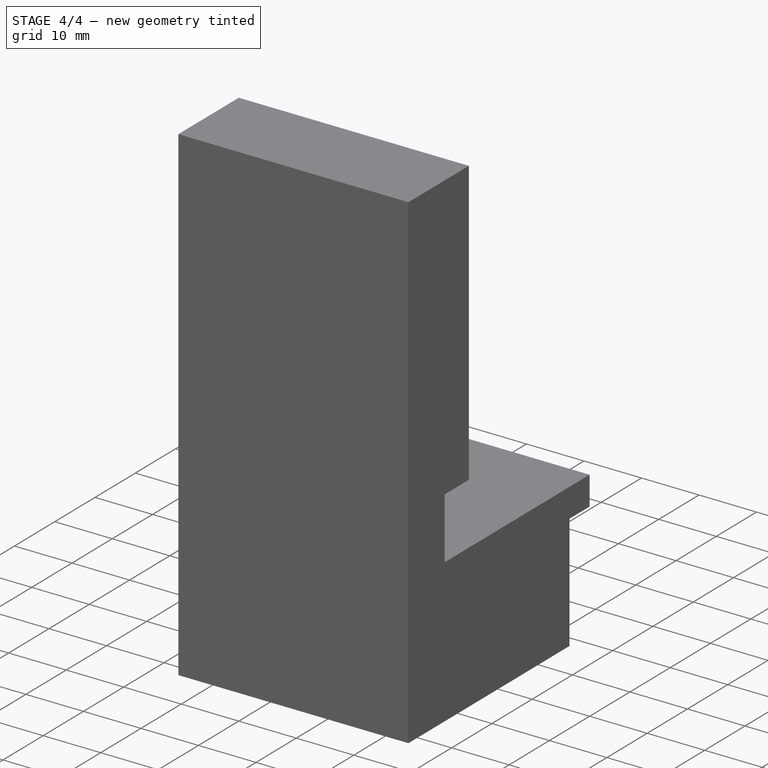
[diagram: stage 4 of 4 — iso view after this stage's code; geometry added in this stage tinted green]
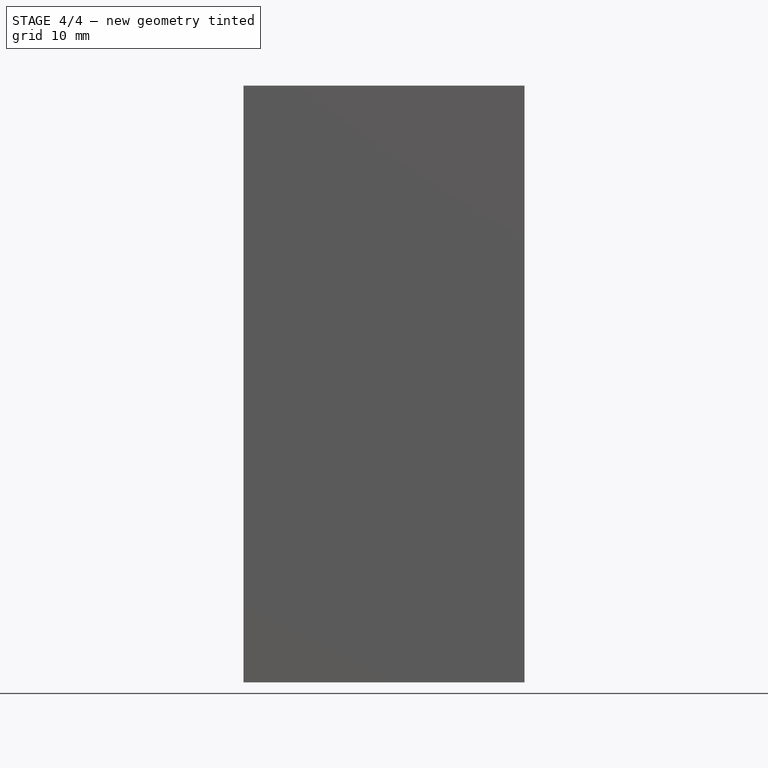
[diagram: stage 4 of 4 — front view after this stage's code; geometry added in this stage tinted green]
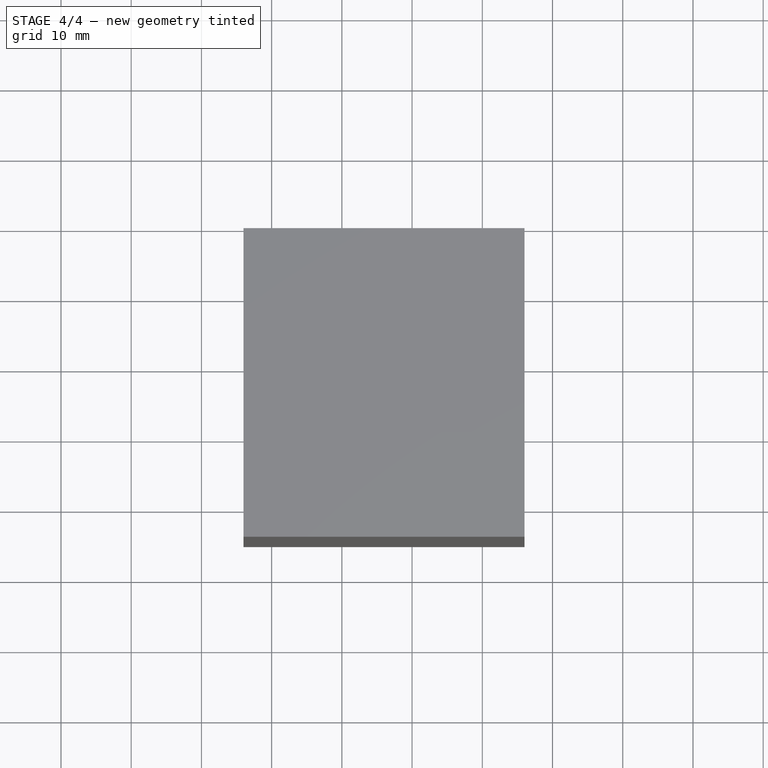
[diagram: stage 4 of 4 — top view after this stage's code; geometry added in this stage tinted green]
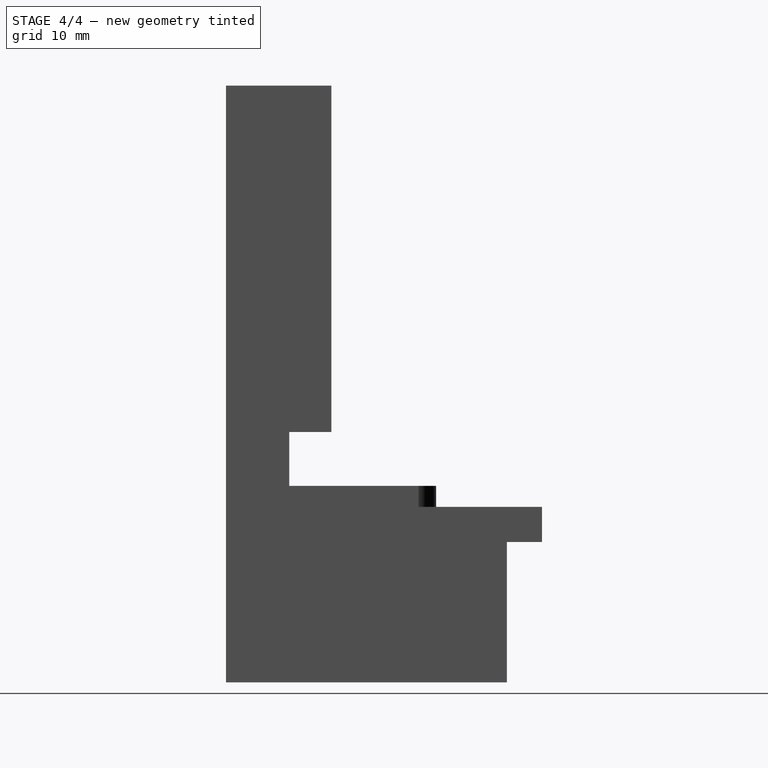
[diagram: stage 4 of 4 — right view after this stage's code; geometry added in this stage tinted green]
FEATURE [App::Point] Origin031  label="Origin039"
  Role = Origin
FEATURE [Sketcher::SketchObject] Sketch011
  ArcFitTolerance = 1e-06
  AttachmentSupport = -> [Origin030]
  ExternalTypes = [0]
  FullyConstrained = true
  MakeInternals = false
  MapMode = 5
  sketch-geometry (4):
    g0: LineSegment StartX=-7.65 StartY=-12.42 StartZ=0 EndX=-7.65 EndY=12.42 EndZ=0
    g1: LineSegment StartX=-7.65 StartY=12.42 StartZ=0 EndX=12.3 EndY=12.42 EndZ=0
    g2: LineSegment StartX=-7.65 StartY=-12.42 StartZ=0 EndX=12.3 EndY=-12.42 EndZ=0
    g3: LineSegment StartX=12.3 StartY=-12.42 StartZ=0 EndX=12.3 EndY=12.42 EndZ=0
  constraints (12):
    c: Vertical(g0)
    c: Coincident(g1,g0)
    c: Horizontal(g1)
    c: Coincident(g2,g0)
    c: Horizontal(g2)
    c: Coincident(g3,g2)
    c: Coincident(g3,g1)
    c: Vertical(g3)
    c: Distance(g-1,g1) = 12.42
    c: Distance(g-1,g2) = 12.42
    c: Distance(g-1,g0) = 7.65
    c: Distance(g-1,g3) = 12.3
FEATURE [PartDesign::Pad] Pad002
  Direction = (0,0,1)
  Length = 3
  Length2 = 10
  Profile = -> Sketch011
  ReferenceAxis = -> Sketch011 [N_Axis]
  Refine = true
  SideType = 0
  Suppressed = false
  Type = 0
  Type2 = 0
FEATURE [Sketcher::SketchObject] Sketch012
  ArcFitTolerance = 1e-06
  AttachmentSupport = -> [Origin030]
  ExternalTypes = [0]
  FullyConstrained = true
  MakeInternals = false
  MapMode = 5
  Placement = pos=(0,0,0) rot=(1,0,0;1.5708rad)
  sketch-geometry (3):
    g0: LineSegment StartX=-5.15 StartY=0.866025 StartZ=0 EndX=-6.65 EndY=0 EndZ=0
    g1: LineSegment StartX=-5.15 StartY=0.866025 StartZ=0 EndX=-3.65 EndY=0 EndZ=0
    g2: LineSegment StartX=-3.65 StartY=0 StartZ=0 EndX=-6.65 EndY=0 EndZ=0
  constraints (9):
    c: Coincident(g1,g0)
    c: Coincident(g2,g1)
    c: Coincident(g2,g0)
    c: PointOnObject(g1,g-1)
    c: PointOnObject(g0,g-1)
    c: Distance(g-1,g1) = 3.65
    c: Distance(g1,g0) = 3
    c: Equal(g0,g1)
    c: Angle(g0,g1) = 2.0944
FEATURE [PartDesign::Pocket] Pocket008
  BaseFeature = -> Pad002
  Direction = (0,1,-2e-16)
  Length = 5
  Length2 = 5
  Profile = -> Sketch012
  ReferenceAxis = -> Sketch012 [N_Axis]
  Refine = true
  SideType = 2
  Suppressed = false
  Type = 1
  Type2 = 0
FEATURE [Sketcher::SketchObject] Sketch013
  ArcFitTolerance = 1e-06
  AttachmentSupport = -> [Origin030]
  ExternalTypes = [0]
  FullyConstrained = true
  MakeInternals = false
  MapMode = 5
  Placement = pos=(0,0,0) rot=(1,0,0;1.5708rad)
  sketch-geometry (4):
    g0: LineSegment StartX=7.3 StartY=0.56 StartZ=0 EndX=7.3 EndY=0 EndZ=0
    g1: LineSegment StartX=7.3 StartY=0 StartZ=0 EndX=12.3 EndY=0 EndZ=0
    g2: LineSegment StartX=12.3 StartY=0 StartZ=0 EndX=12.3 EndY=0.56 EndZ=0
    g3: LineSegment StartX=12.3 StartY=0.56 StartZ=0 EndX=7.3 EndY=0.56 EndZ=0
  constraints (12):
    c: Coincident(g0,g1)
    c: Coincident(g1,g2)
    c: Coincident(g2,g3)
    c: Coincident(g3,g0)
    c: Vertical(g0)
    c: Vertical(g2)
    c: Horizontal(g1)
    c: Horizontal(g3)
    c: Distance(g-1,g0) = 7.3
    c: DistanceX(g3,g3) = 5
    c: PointOnObject(g0,g-1)
    c: DistanceY(g0,g0) = 0.56
FEATURE [PartDesign::Pocket] Pocket009
  BaseFeature = -> Pocket008
  Direction = (0,1,-2e-16)
  Length = 5
  Length2 = 5
  Profile = -> Sketch013
  ReferenceAxis = -> Sketch013 [N_Axis]
  Refine = true
  SideType = 2
  Suppressed = false
  Type = 1
  Type2 = 0
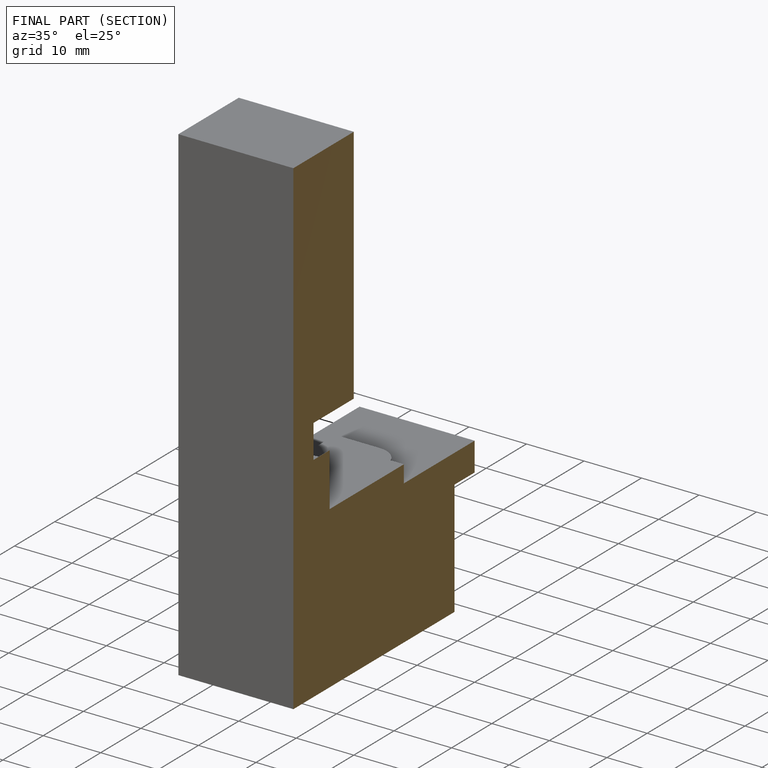
[diagram: finished part — half-section view (interior)]
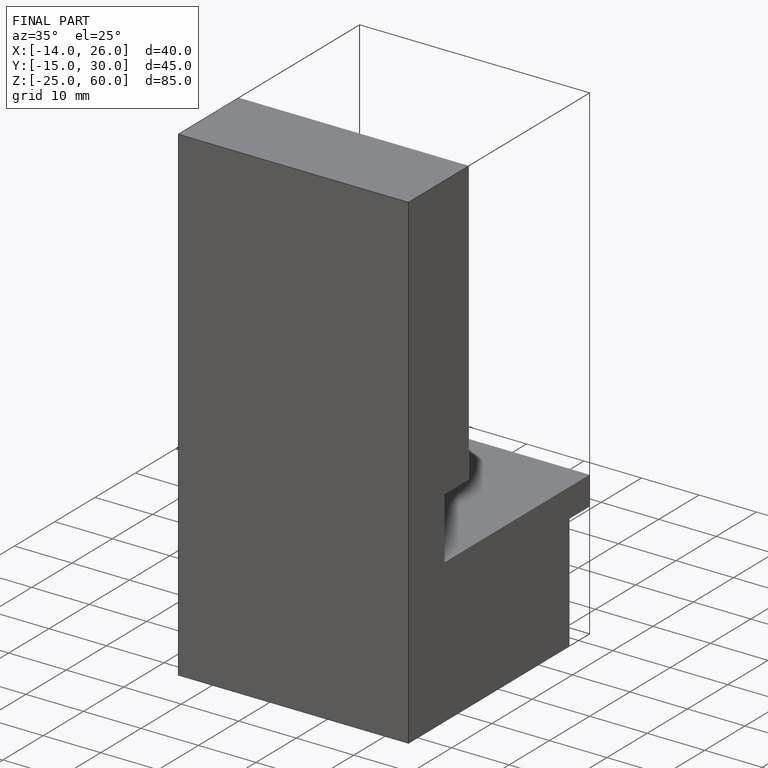
[diagram: finished part — iso view with bounding-box wireframe]
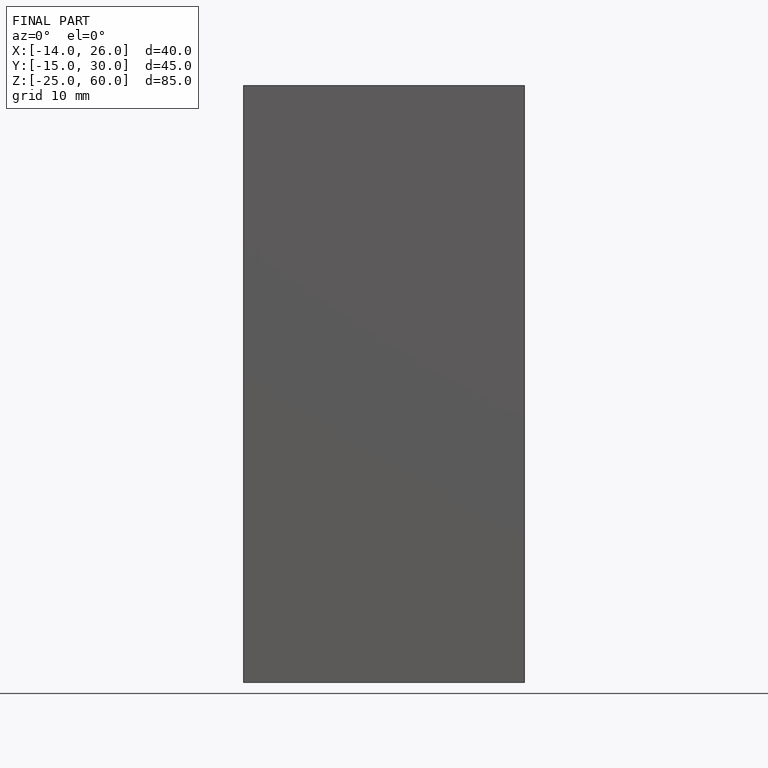
[diagram: finished part — front view with bounding-box wireframe]
